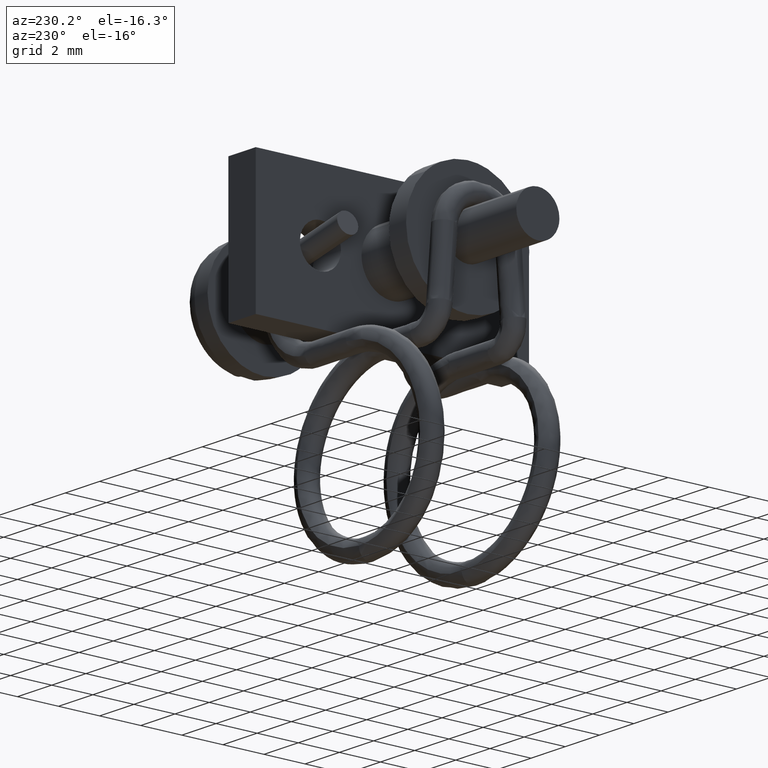
[diagram: clean part render]
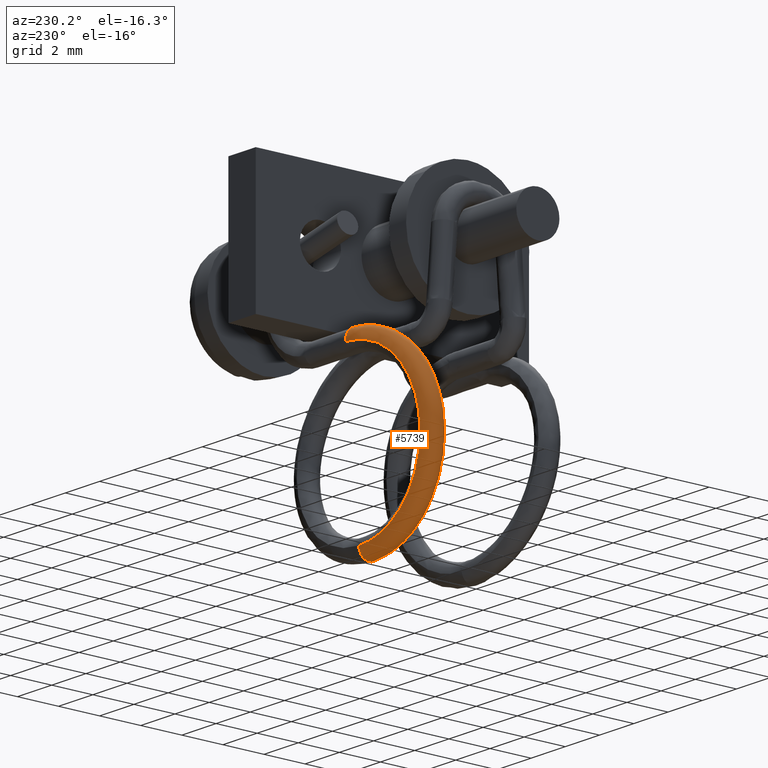
[diagram: same view with one face highlighted and labeled with its STEP entity id]
A machine part, auxiliary view. The second image highlights one B-rep face of the part: STEP entity #5739.
In plain terms, the highlighted face is a freeform B-spline surface patch.
Its self-contained STEP definition (entity closure, byte-faithful):
#5269=CARTESIAN_POINT('',(-9.150000000000000,2.001543864205443,-12.039261694970280));
#5270=VERTEX_POINT('',#5269);
#5286=CARTESIAN_POINT('',(-9.150000000000000,2.998456135786393,-11.960738305056941));
#5287=VERTEX_POINT('',#5286);
#5399=CARTESIAN_POINT('',(-9.150000000000000,2.998456135786393,-11.960738305056941));
#5400=CARTESIAN_POINT('',(-9.150000000000000,3.019013511193622,-12.221729327447321));
#5401=CARTESIAN_POINT('',(-9.150000000000000,2.800252717341943,-12.477898760398819));
#5402=CARTESIAN_POINT('',(-9.150000000000000,2.278270672563240,-12.519013511213281));
#5403=CARTESIAN_POINT('',(-9.150000000000000,2.022101239612670,-12.300252717360660));
#5404=CARTESIAN_POINT('',(-9.150000000000000,2.001543864205443,-12.039261694970280));
#5405=B_SPLINE_CURVE_WITH_KNOTS('',3,(#5399,#5400,#5401,#5402,#5403,#5404),.UNSPECIFIED.,.F.,.U.,(4,2,4),(0.0,0.250000000000000,0.500000000000000),.UNSPECIFIED.);
#5406=EDGE_CURVE('',#5287,#5270,#5405,.T.);
#5535=CARTESIAN_POINT('',(-9.150000000000002,2.652147118047050,-3.882223851603017));
#5536=VERTEX_POINT('',#5535);
#5537=CARTESIAN_POINT('',(-9.150000000000002,2.652147118047050,-3.882223851603017));
#5538=CARTESIAN_POINT('',(-10.221433213254720,2.652147118047050,-3.882223851603017));
#5539=CARTESIAN_POINT('',(-11.280296696234430,2.617034154981931,-4.322457998271165));
#5540=CARTESIAN_POINT('',(-12.790071158822579,2.496533804040650,-5.833249585944897));
#5541=CARTESIAN_POINT('',(-13.229082139714979,2.411891420588205,-6.894466419609308));
#5542=CARTESIAN_POINT('',(-13.228454066088410,2.241608174763418,-9.029418669170507));
#5543=CARTESIAN_POINT('',(-12.788849127149780,2.157006533974403,-10.090124685459051));
#5544=CARTESIAN_POINT('',(-11.278973692111981,2.036604432910512,-11.599684450259900));
#5545=CARTESIAN_POINT('',(-10.220625479701850,2.001543864193662,-12.039261694970280));
#5546=CARTESIAN_POINT('',(-9.150000000000000,2.001543864193662,-12.039261694970280));
#5547=B_SPLINE_CURVE_WITH_KNOTS('',3,(#5537,#5538,#5539,#5540,#5541,#5542,#5543,#5544,#5545,#5546),.UNSPECIFIED.,.F.,.U.,(4,2,2,2,4),(0.121972966932091,0.156510963884583,0.191048960837076,0.225586957789568,0.260124954742059),.UNSPECIFIED.);
#5548=EDGE_CURVE('',#5536,#5270,#5547,.T.);
#5551=CARTESIAN_POINT('',(-9.150000000000006,3.624008793126636,-4.117776148370250));
#5552=VERTEX_POINT('',#5551);
#5553=CARTESIAN_POINT('',(-9.150000000000006,3.624008793126636,-4.117776148370250));
#5554=CARTESIAN_POINT('',(-10.179905583609250,3.624008793126636,-4.117776148370250));
#5555=CARTESIAN_POINT('',(-11.197798451508090,3.590258008171898,-4.540931778554412));
#5556=CARTESIAN_POINT('',(-12.649351253151970,3.474404530486941,-5.993462481754292));
#5557=CARTESIAN_POINT('',(-13.071533533738121,3.393013983088123,-7.013908923332987));
#5558=CARTESIAN_POINT('',(-13.070929568148390,3.229266905139422,-9.066912968050527));
#5559=CARTESIAN_POINT('',(-12.648176227126170,3.147915553959243,-10.086867981040850));
#5560=CARTESIAN_POINT('',(-11.196526586540910,3.032156556440463,-11.538214124700341));
#5561=CARTESIAN_POINT('',(-10.179129189711070,2.998456135778540,-11.960738305056941));
#5562=CARTESIAN_POINT('',(-9.150000000000000,2.998456135778540,-11.960738305056941));
#5563=B_SPLINE_CURVE_WITH_KNOTS('',3,(#5553,#5554,#5555,#5556,#5557,#5558,#5559,#5560,#5561,#5562),.UNSPECIFIED.,.F.,.U.,(4,2,2,2,4),(0.121972966932091,0.156510963884583,0.191048960837076,0.225586957789568,0.260124954742059),.UNSPECIFIED.);
#5564=EDGE_CURVE('',#5552,#5287,#5563,.T.);
#5591=CARTESIAN_POINT('',(-9.026900697270461,3.619548663881759,-4.133153066296689));
#5592=CARTESIAN_POINT('',(-9.022740556967325,3.657075637371529,-4.004238399139312));
#5593=CARTESIAN_POINT('',(-9.014105713266073,3.613264363277726,-3.721257110829733));
#5594=CARTESIAN_POINT('',(-9.008965914962483,3.387362858344270,-3.543060326547119));
#5595=CARTESIAN_POINT('',(-9.007635684955261,3.125682421796512,-3.479496727785941));
#5596=CARTESIAN_POINT('',(-9.010237399807778,2.843153682796021,-3.534277284257776));
#5597=CARTESIAN_POINT('',(-9.017712171019433,2.674589680274691,-3.766397304483888));
#5598=CARTESIAN_POINT('',(-9.021920130721824,2.649033480853777,-3.897860848635900));
#5599=CARTESIAN_POINT('',(-9.067933794195266,3.619777662374734,-4.132970082008243));
#5600=CARTESIAN_POINT('',(-9.065160367898438,3.656764294614842,-4.004505387964860));
#5601=CARTESIAN_POINT('',(-9.059403807353396,3.613982593248432,-3.721097406083297));
#5602=CARTESIAN_POINT('',(-9.055977276158046,3.387127146633878,-3.543460495410657));
#5603=CARTESIAN_POINT('',(-9.055090457076945,3.125737562238457,-3.479891379308258));
#5604=CARTESIAN_POINT('',(-9.056824934537287,2.842494455342545,-3.533641447713896));
#5605=CARTESIAN_POINT('',(-9.061808117393801,2.674704488754325,-3.766797912920513));
#5606=CARTESIAN_POINT('',(-9.064613424618536,2.648994472245184,-3.897704906335400));
#5607=CARTESIAN_POINT('',(-9.108966888485806,3.619846336390676,-4.132955525130092));
#5608=CARTESIAN_POINT('',(-9.107580172760512,3.655550751806117,-4.005675853708477));
#5609=CARTESIAN_POINT('',(-9.104701889840406,3.617575111653745,-3.718364524195366));
#5610=CARTESIAN_POINT('',(-9.102988633519759,3.384705876681100,-3.544504806341271));
#5611=CARTESIAN_POINT('',(-9.102545233062207,3.127315800560954,-3.481737423273017));
#5612=CARTESIAN_POINT('',(-9.103412481419269,2.840918013393817,-3.530725958578910));
#5613=CARTESIAN_POINT('',(-9.105904069745131,2.674893061136895,-3.767801849995816));
#5614=CARTESIAN_POINT('',(-9.107306720910364,2.648955019854683,-3.897691156749249));
#5615=CARTESIAN_POINT('',(-9.662913976243759,3.619629835454333,-4.133214075079567));
#5616=CARTESIAN_POINT('',(-9.680247965433596,3.660816534736413,-4.001250584985336));
#5617=CARTESIAN_POINT('',(-9.716226535330280,3.605435510520678,-3.725499756091615));
#5618=CARTESIAN_POINT('',(-9.737642133349180,3.387373857011490,-3.546476583059364));
#5619=CARTESIAN_POINT('',(-9.743184534787567,3.124638853038845,-3.483054062012527));
#5620=CARTESIAN_POINT('',(-9.732343817726118,2.849152621141680,-3.542421214008328));
#5621=CARTESIAN_POINT('',(-9.701199003167860,2.673344232030256,-3.762140319729095));
#5622=CARTESIAN_POINT('',(-9.683665909276385,2.648903437631384,-3.897888837683289));
#5623=CARTESIAN_POINT('',(-10.682762269520200,3.603261144180880,-4.343746807495708));
#5624=CARTESIAN_POINT('',(-10.734531271351459,3.637904706050571,-4.222074153434416));
#5625=CARTESIAN_POINT('',(-10.841983709050989,3.587452142334041,-3.955676451012846));
#5626=CARTESIAN_POINT('',(-10.905944471464601,3.367035639508772,-3.782435323320307));
#5627=CARTESIAN_POINT('',(-10.922498627514351,3.107792567817548,-3.721792409124010));
#5628=CARTESIAN_POINT('',(-10.890123110687620,2.829332764064121,-3.778587719680536));
#5629=CARTESIAN_POINT('',(-10.797105643418661,2.657999649212418,-3.993250542199898));
#5630=CARTESIAN_POINT('',(-10.744741021430400,2.631219806729962,-4.116874038750002));
#5631=CARTESIAN_POINT('',(-11.551155515579570,3.557492079090849,-4.916293403295931));
#5632=CARTESIAN_POINT('',(-11.632178005220780,3.592434913970801,-4.812444566191137));
#5633=CARTESIAN_POINT('',(-11.800348613987151,3.535894085456623,-4.587918420837402));
#5634=CARTESIAN_POINT('',(-11.900449283315011,3.314923205251199,-4.439681432788117));
#5635=CARTESIAN_POINT('',(-11.926355614426839,3.054338696883133,-4.385156206862795));
#5636=CARTESIAN_POINT('',(-11.875684668440050,2.778760395544640,-4.429470331751817));
#5637=CARTESIAN_POINT('',(-11.730108775986080,2.608314665302811,-4.606488322479152));
#5638=CARTESIAN_POINT('',(-11.648156361365009,2.583737399880515,-4.712515984748390));
#5639=CARTESIAN_POINT('',(-12.635532559154180,3.470998075634832,-6.001389413466153));
#5640=CARTESIAN_POINT('',(-12.753007530689599,3.502387737353824,-5.934225265555276));
#5641=CARTESIAN_POINT('',(-12.996839305504110,3.440122044879220,-5.784960494320474));
#5642=CARTESIAN_POINT('',(-13.141978568268740,3.215632274935424,-5.681601038413871));
#5643=CARTESIAN_POINT('',(-13.179542626263480,2.954626757430793,-5.638831956917063));
#5644=CARTESIAN_POINT('',(-13.106075282367790,2.680812468229430,-5.660533051212064));
#5645=CARTESIAN_POINT('',(-12.895000000364570,2.515706727459289,-5.772564652095466));
#5646=CARTESIAN_POINT('',(-12.776174512651099,2.493671993253181,-5.841266603359586));
#5647=CARTESIAN_POINT('',(-13.056061495653930,3.389906402812420,-7.017847183756019));
#5648=CARTESIAN_POINT('',(-13.187588540120259,3.418826343147849,-6.984538686975416));
#5649=CARTESIAN_POINT('',(-13.460583894934199,3.350887189965115,-6.905950321843108));
#5650=CARTESIAN_POINT('',(-13.623076737148491,3.123013782414570,-6.844665262957762));
#5651=CARTESIAN_POINT('',(-13.665128646612979,2.860904255447582,-6.812731985680953));
#5652=CARTESIAN_POINT('',(-13.582871603091069,2.588789206793020,-6.813110643836660));
#5653=CARTESIAN_POINT('',(-13.346557189116190,2.428534960602706,-6.863945632475209));
#5654=CARTESIAN_POINT('',(-13.213524333367060,2.409359303455949,-6.898479689387778));
#5655=CARTESIAN_POINT('',(-13.055459610255181,3.226850884201612,-9.062702620552058));
#5656=CARTESIAN_POINT('',(-13.186968970005131,3.249862114978257,-9.098695372507624));
#5657=CARTESIAN_POINT('',(-13.459925377819280,3.170137151802261,-9.163412039977228));
#5658=CARTESIAN_POINT('',(-13.622390278485581,2.935645214258082,-9.187150183750758));
#5659=CARTESIAN_POINT('',(-13.664432064046229,2.672105826159767,-9.177168095918480));
#5660=CARTESIAN_POINT('',(-13.582184439028181,2.403715706220526,-9.134374521085045));
#5661=CARTESIAN_POINT('',(-13.345908953385781,2.253399670035711,-9.060894908630987));
#5662=CARTESIAN_POINT('',(-13.212898931481460,2.239720734097694,-9.025223893721460));
#5663=CARTESIAN_POINT('',(-12.634362276615249,3.145816786275460,-10.078615680086189));
#5664=CARTESIAN_POINT('',(-12.751797041189850,3.166138445211647,-10.148963746133569));
#5665=CARTESIAN_POINT('',(-12.995545806289430,3.080756719612514,-10.284805012162980));
#5666=CARTESIAN_POINT('',(-13.140637861229420,2.842780894448163,-10.350730455140610));
#5667=CARTESIAN_POINT('',(-13.178191051806779,2.578239091573719,-10.351594436305190));
#5668=CARTESIAN_POINT('',(-13.104749632590231,2.311492956675693,-10.287320640230639));
#5669=CARTESIAN_POINT('',(-12.893743592342251,2.166240956013116,-10.152245816205721));
#5670=CARTESIAN_POINT('',(-12.774957017447051,2.155457050870066,-10.081872167578210));
#5671=CARTESIAN_POINT('',(-11.188429572098959,3.030513509334741,-11.524250696386121));
#5672=CARTESIAN_POINT('',(-11.257258970281150,3.046959578994867,-11.643147320328501));
#5673=CARTESIAN_POINT('',(-11.400121000963489,2.953533796495713,-11.879810840238660));
#5674=CARTESIAN_POINT('',(-11.485155517980211,2.710777017703977,-12.005749548408950));
#5675=CARTESIAN_POINT('',(-11.507161688672721,2.445025065637363,-12.022162155099171));
#5676=CARTESIAN_POINT('',(-11.464115726658189,2.180695737593939,-11.927539879823589));
#5677=CARTESIAN_POINT('',(-11.340450168563940,2.042378948975301,-11.705179983628019));
#5678=CARTESIAN_POINT('',(-11.270832450665109,2.035513163506120,-11.585685871092060));
#5679=CARTESIAN_POINT('',(-10.175054693542281,2.996949476704112,-11.945092668386261));
#5680=CARTESIAN_POINT('',(-10.209695777740500,3.012235922723534,-12.078313902925560));
#5681=CARTESIAN_POINT('',(-10.281597448448210,2.916440700384333,-12.344475373819950));
#5682=CARTESIAN_POINT('',(-10.324397471470681,2.672324139305028,-12.488013259582569));
#5683=CARTESIAN_POINT('',(-10.335475292604990,2.406196431172737,-12.508974203063280));
#5684=CARTESIAN_POINT('',(-10.313811390089720,2.142620169567691,-12.405424173530930));
#5685=CARTESIAN_POINT('',(-10.251567587335989,2.006339752967936,-12.157544403337440));
#5686=CARTESIAN_POINT('',(-10.216527122131319,2.000582597732929,-12.023573730967691));
#5687=CARTESIAN_POINT('',(-9.108997834105781,2.996935988875659,-11.945105858474930));
#5688=CARTESIAN_POINT('',(-9.107612176993319,3.012341380107671,-12.078165203699450));
#5689=CARTESIAN_POINT('',(-9.104736084938187,2.916639480563272,-12.344434233509689));
#5690=CARTESIAN_POINT('',(-9.103024093669157,2.672362708432130,-12.487970361109330));
#5691=CARTESIAN_POINT('',(-9.102580995684589,2.406160832854902,-12.508938188137151));
#5692=CARTESIAN_POINT('',(-9.103447561516527,2.142424192403009,-12.405416618992760));
#5693=CARTESIAN_POINT('',(-9.105937288421993,2.006214785790121,-12.157414554110151));
#5694=CARTESIAN_POINT('',(-9.107338893233752,2.000598042271526,-12.023584222929360));
#5695=CARTESIAN_POINT('',(-9.067995718352051,2.996933838128597,-11.945106423660050));
#5696=CARTESIAN_POINT('',(-9.065224375274610,3.012332250386223,-12.078178186493160));
#5697=CARTESIAN_POINT('',(-9.059472141411270,2.916623323987075,-12.344428922846181));
#5698=CARTESIAN_POINT('',(-9.056048174380710,2.672361272330833,-12.487967646777820));
#5699=CARTESIAN_POINT('',(-9.055162004180664,2.406162398849936,-12.508935173721129));
#5700=CARTESIAN_POINT('',(-9.056895151507844,2.142439925968603,-12.405408612903040));
#5701=CARTESIAN_POINT('',(-9.061874555604781,2.006226506500510,-12.157425740249410));
#5702=CARTESIAN_POINT('',(-9.064677736281533,2.000600956346061,-12.023584235840760));
#5703=CARTESIAN_POINT('',(-9.026993577990213,2.996934766978744,-11.945103393340530));
#5704=CARTESIAN_POINT('',(-9.022836570401932,3.012327016243538,-12.078185597548041));
#5705=CARTESIAN_POINT('',(-9.014208227412924,2.916619017436696,-12.344423604705099));
#5706=CARTESIAN_POINT('',(-9.009072267681415,2.672361056267389,-12.487965626034489));
#5707=CARTESIAN_POINT('',(-9.007743000227292,2.406162869245073,-12.508933089202550));
#5708=CARTESIAN_POINT('',(-9.010342711991465,2.142443896884839,-12.405402613347039));
#5709=CARTESIAN_POINT('',(-9.017811825935299,2.006233329735168,-12.157432144579360));
#5710=CARTESIAN_POINT('',(-9.022016603995866,2.000600037717173,-12.023581278885420));
#5711=B_SPLINE_SURFACE_WITH_KNOTS('',3,3,((#5591,#5599,#5607,#5615,#5623,#5631,#5639,#5647,#5655,#5663,#5671,#5679,#5687,#5695,#5703),(#5592,#5600,#5608,#5616,#5624,#5632,#5640,#5648,#5656,#5664,#5672,#5680,#5688,#5696,#5704),(#5593,#5601,#5609,#5617,#5625,#5633,#5641,#5649,#5657,#5665,#5673,#5681,#5689,#5697,#5705),(#5594,#5602,#5610,#5618,#5626,#5634,#5642,#5650,#5658,#5666,#5674,#5682,#5690,#5698,#5706),(#5595,#5603,#5611,#5619,#5627,#5635,#5643,#5651,#5659,#5667,#5675,#5683,#5691,#5699,#5707),(#5596,#5604,#5612,#5620,#5628,#5636,#5644,#5652,#5660,#5668,#5676,#5684,#5692,#5700,#5708),(#5597,#5605,#5613,#5621,#5629,#5637,#5645,#5653,#5661,#5669,#5677,#5685,#5693,#5701,#5709),(#5598,#5606,#5614,#5622,#5630,#5638,#5646,#5654,#5662,#5670,#5678,#5686,#5694,#5702,#5710)),.UNSPECIFIED.,.F.,.F.,.U.,(4,1,2,1,4),(4,2,1,2,2,2,2,4),(0.0,0.402277697847478,0.804555395694956,1.206832954857790,1.609110514020624),(0.0,0.140630175704692,1.898507372013345,3.656384568321998,7.172138960939352,10.687893353556660,14.203647746173960,14.344277921878660),.UNSPECIFIED.);
#5712=ORIENTED_EDGE('',*,*,#5548,.F.);
#5713=CARTESIAN_POINT('',(-9.150000000000002,3.293607082339547,-3.524836942540950));
#5714=VERTEX_POINT('',#5713);
#5715=CARTESIAN_POINT('',(-9.150000000000002,3.293607082339547,-3.524836942540950));
#5716=CARTESIAN_POINT('',(-9.150000000000002,3.281182161415388,-3.520731722744352));
#5717=CARTESIAN_POINT('',(-9.150000000000002,3.268590214515879,-3.517125273238843));
#5718=CARTESIAN_POINT('',(-9.150000000000002,3.128645731521829,-3.483211157675478));
#5719=CARTESIAN_POINT('',(-9.150000000000004,2.989517876398461,-3.504942829054503));
#5720=CARTESIAN_POINT('',(-9.150000000000002,2.765997815766273,-3.641258916875952));
#5721=CARTESIAN_POINT('',(-9.150000000000004,2.682982009399322,-3.755003921653175));
#5722=CARTESIAN_POINT('',(-9.150000000000002,2.652147118047050,-3.882223851603017));
#5723=B_SPLINE_CURVE_WITH_KNOTS('',3,(#5715,#5716,#5717,#5718,#5719,#5720,#5721,#5722),.UNSPECIFIED.,.F.,.U.,(4,2,2,4),(0.237495030351029,0.250000000000000,0.375000000000000,0.500000000000000),.UNSPECIFIED.);
#5724=EDGE_CURVE('',#5714,#5536,#5723,.T.);
#5725=ORIENTED_EDGE('',*,*,#5724,.F.);
#5726=CARTESIAN_POINT('',(-9.150000000000006,3.624008793126636,-4.117776148370250));
#5727=CARTESIAN_POINT('',(-9.150000000000004,3.654843883330037,-3.990555616631819));
#5728=CARTESIAN_POINT('',(-9.150000000000004,3.633119345347447,-3.851423813356720));
#5729=CARTESIAN_POINT('',(-9.150000000000002,3.503635190318198,-3.639076771714426));
#5730=CARTESIAN_POINT('',(-9.150000000000004,3.405379712778019,-3.561774504550890));
#5731=CARTESIAN_POINT('',(-9.150000000000002,3.293607082339547,-3.524836942540950));
#5732=B_SPLINE_CURVE_WITH_KNOTS('',3,(#5726,#5727,#5728,#5729,#5730,#5731),.UNSPECIFIED.,.F.,.U.,(4,2,4),(0.0,0.125000000000000,0.237495030351029),.UNSPECIFIED.);
#5733=EDGE_CURVE('',#5552,#5714,#5732,.T.);
#5734=ORIENTED_EDGE('',*,*,#5733,.F.);
#5735=ORIENTED_EDGE('',*,*,#5564,.T.);
#5736=ORIENTED_EDGE('',*,*,#5406,.T.);
#5737=EDGE_LOOP('',(#5712,#5725,#5734,#5735,#5736));
#5738=FACE_OUTER_BOUND('',#5737,.T.);
#5739=ADVANCED_FACE('',(#5738),#5711,.F.);